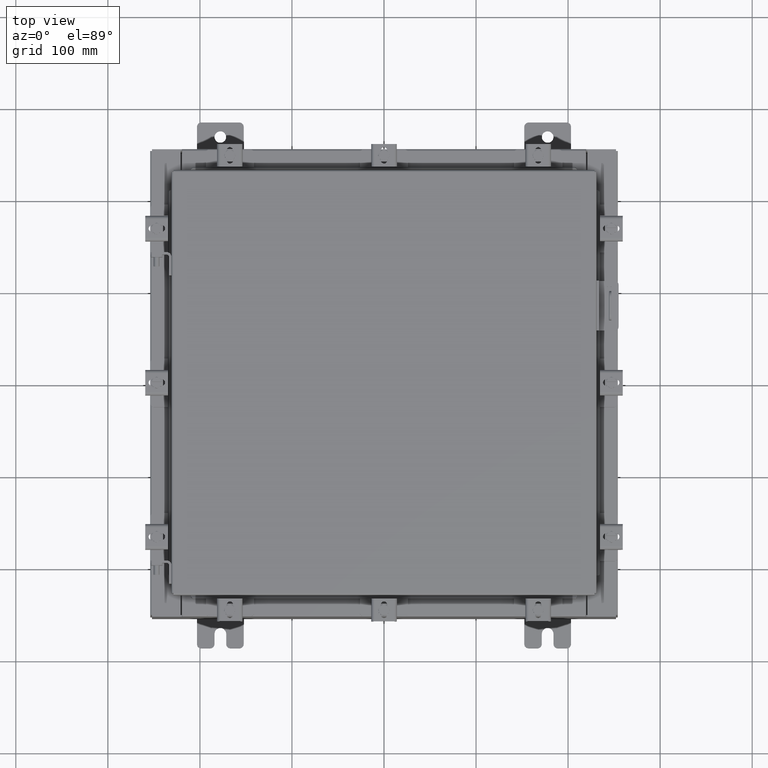
[diagram: clean part render]
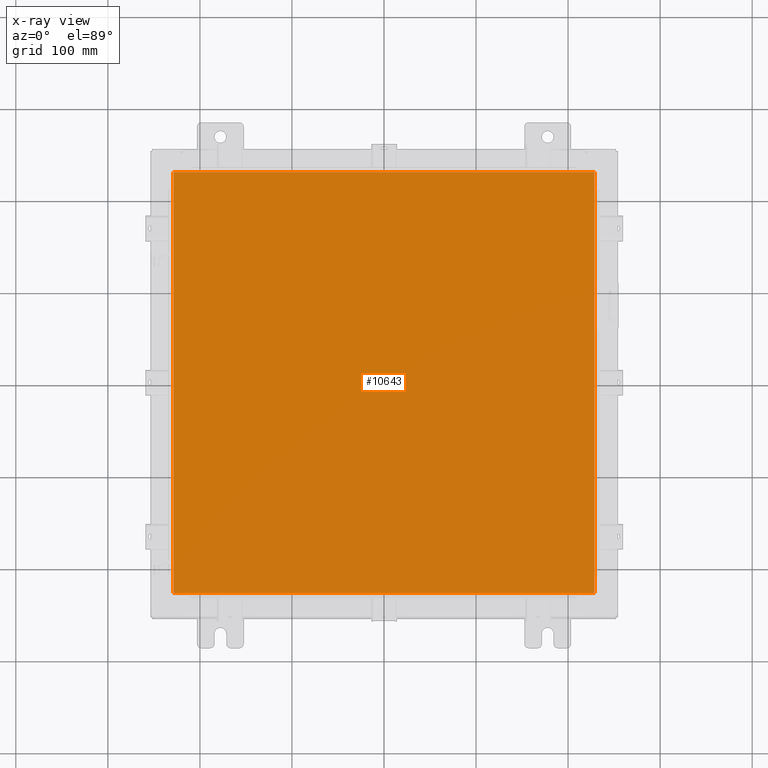
[diagram: x-ray — body ghosted, one internal face saturated and labeled with its STEP entity id]
A machine part, top view, then the same camera in x-ray: the body is ghosted and one INTERNAL B-rep face — a face not visible from any outside direction — is saturated and labeled: STEP entity #10643.
In plain terms, the highlighted planar face has unit normal (0, 0, -1).
Its self-contained STEP definition (entity closure, byte-faithful):
#286 = CARTESIAN_POINT ( 'NONE',  ( -9.006299999999997800, 9.006299999999997800, -0.07470000000000015500 ) ) ;
#971 = CARTESIAN_POINT ( 'NONE',  ( 0.0000000000000000000, 0.0000000000000000000, -0.07470000000000015500 ) ) ;
#2728 = DIRECTION ( 'NONE',  ( -1.000000000000000000, 0.0000000000000000000, -0.0000000000000000000 ) ) ;
#2933 = LINE ( 'NONE', #11859, #12256 ) ;
#5401 = CARTESIAN_POINT ( 'NONE',  ( 9.006299999999999500, 9.006299999999999500, -0.07470000000000015500 ) ) ;
#6336 = CARTESIAN_POINT ( 'NONE',  ( -9.006299999999997800, -9.006299999999999500, -0.07470000000000015500 ) ) ;
#6384 = VERTEX_POINT ( 'NONE', #21062 ) ;
#7636 = LINE ( 'NONE', #11142, #16441 ) ;
#7799 = FACE_OUTER_BOUND ( 'NONE', #8654, .T. ) ;
#7879 = ORIENTED_EDGE ( 'NONE', *, *, #15977, .F. ) ;
#8122 = DIRECTION ( 'NONE',  ( 1.000000000000000000, -0.0000000000000000000, -0.0000000000000000000 ) ) ;
#8166 = VERTEX_POINT ( 'NONE', #22358 ) ;
#8351 = DIRECTION ( 'NONE',  ( 0.0000000000000000000, -1.000000000000000000, 0.0000000000000000000 ) ) ;
#8478 = VECTOR ( 'NONE', #8122, 39.37007874015748100 ) ;
#8654 = EDGE_LOOP ( 'NONE', ( #7879, #21597, #9556, #12427 ) ) ;
#9556 = ORIENTED_EDGE ( 'NONE', *, *, #15141, .F. ) ;
#10643 = ADVANCED_FACE ( 'NONE', ( #7799 ), #11431, .T. ) ;
#11142 = CARTESIAN_POINT ( 'NONE',  ( 9.006300000000001300, 9.006299999999999500, -0.07470000000000015500 ) ) ;
#11431 = PLANE ( 'NONE',  #15837 ) ;
#11839 = DIRECTION ( 'NONE',  ( 0.0000000000000000000, 1.000000000000000000, 0.0000000000000000000 ) ) ;
#11859 = CARTESIAN_POINT ( 'NONE',  ( -9.006299999999997800, 9.006299999999999500, -0.07470000000000125200 ) ) ;
#12256 = VECTOR ( 'NONE', #8351, 39.37007874015748100 ) ;
#12427 = ORIENTED_EDGE ( 'NONE', *, *, #14240, .F. ) ;
#13243 = DIRECTION ( 'NONE',  ( 0.0000000000000000000, 0.0000000000000000000, -1.000000000000000000 ) ) ;
#14240 = EDGE_CURVE ( 'NONE', #18050, #21575, #7636, .T. ) ;
#15141 = EDGE_CURVE ( 'NONE', #21575, #6384, #2933, .T. ) ;
#15837 = AXIS2_PLACEMENT_3D ( 'NONE', #971, #13243, #2728 ) ;
#15977 = EDGE_CURVE ( 'NONE', #8166, #18050, #21678, .T. ) ;
#16441 = VECTOR ( 'NONE', #18189, 39.37007874015748100 ) ;
#17066 = VECTOR ( 'NONE', #11839, 39.37007874015748100 ) ;
#18050 = VERTEX_POINT ( 'NONE', #5401 ) ;
#18189 = DIRECTION ( 'NONE',  ( -1.000000000000000000, -0.0000000000000000000, -0.0000000000000000000 ) ) ;
#18587 = EDGE_CURVE ( 'NONE', #6384, #8166, #22374, .T. ) ;
#21062 = CARTESIAN_POINT ( 'NONE',  ( -9.006299999999997800, -9.006299999999999500, -0.07470000000000015500 ) ) ;
#21575 = VERTEX_POINT ( 'NONE', #286 ) ;
#21597 = ORIENTED_EDGE ( 'NONE', *, *, #18587, .F. ) ;
#21678 = LINE ( 'NONE', #22266, #17066 ) ;
#22266 = CARTESIAN_POINT ( 'NONE',  ( 9.006300000000001300, -9.006299999999999500, -0.07470000000000015500 ) ) ;
#22358 = CARTESIAN_POINT ( 'NONE',  ( 9.006300000000001300, -9.006299999999999500, -0.07470000000000015500 ) ) ;
#22374 = LINE ( 'NONE', #6336, #8478 ) ;